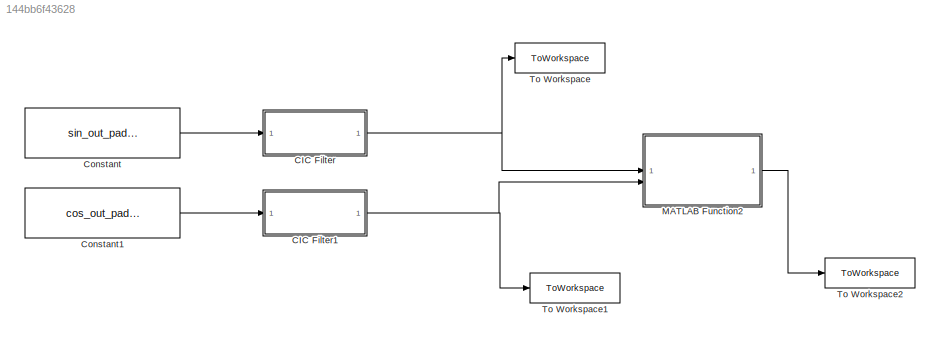
MODEL slx_144bb6f43628
KIND model
CONFIG AbsTol = auto
CONFIG EnableMultiTasking = off
CONFIG FixedStep = 1.25e-8
CONFIG MaxStep = auto
CONFIG MinStep = auto
CONFIG RelTol = 1e-3
CONFIG SampleTimeConstraint = Unconstrained
CONFIG SolverName = FixedStepAuto
CONFIG StartTime = 0.0
CONFIG StopTime = 0.01
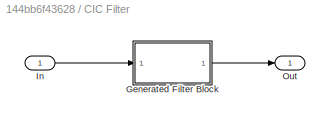
BLOCK [SubSystem] CIC Filter
  CopyFcn = fdesignblkfcn(gcbh, {'CopyFcn'});
  DialogController = fdesignblkfcn
  InitFcn = fdesignblkfcn(gcbh, {'InitFcn'});
  UserDataPersistent = on
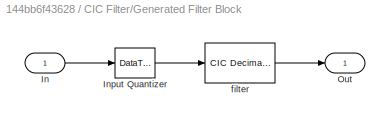
BLOCK [SubSystem] CIC Filter/Generated Filter Block
  Tag = BlockMethodSubSystem
BLOCK [Inport] CIC Filter/Generated Filter Block/In
BLOCK [DataTypeConversion] CIC Filter/Generated Filter Block/Input Quantizer
  OutDataTypeStr = fixdt(1,16,15)
  RndMeth = Round
BLOCK [Outport] CIC Filter/Generated Filter Block/Out
BLOCK [Reference] CIC Filter/Generated Filter Block/filter  REF=dspmlti4/CIC
Decimation
  SourceBlock = dspmlti4/CIC\nDecimation
  SourceType = CIC Decimation
  UserDataPersistent = on
BLOCK [Inport] CIC Filter/In
BLOCK [Outport] CIC Filter/Out
  VectorParamsAs1DForOutWhenUnconnected = off
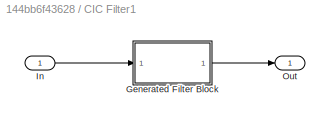
BLOCK [SubSystem] CIC Filter1
  CopyFcn = fdesignblkfcn(gcbh, {'CopyFcn'});
  DialogController = fdesignblkfcn
  InitFcn = fdesignblkfcn(gcbh, {'InitFcn'});
  UserDataPersistent = on
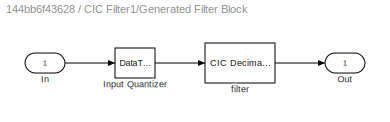
BLOCK [SubSystem] CIC Filter1/Generated Filter Block
  Tag = BlockMethodSubSystem
BLOCK [Inport] CIC Filter1/Generated Filter Block/In
BLOCK [DataTypeConversion] CIC Filter1/Generated Filter Block/Input Quantizer
  OutDataTypeStr = fixdt(1,16,15)
  RndMeth = Round
BLOCK [Outport] CIC Filter1/Generated Filter Block/Out
BLOCK [Reference] CIC Filter1/Generated Filter Block/filter  REF=dspmlti4/CIC
Decimation
  SourceBlock = dspmlti4/CIC\nDecimation
  SourceType = CIC Decimation
  UserDataPersistent = on
BLOCK [Inport] CIC Filter1/In
BLOCK [Outport] CIC Filter1/Out
  VectorParamsAs1DForOutWhenUnconnected = off
BLOCK [Constant] Constant
  Value = sin_out_padded
BLOCK [Constant] Constant1
  Value = cos_out_padded
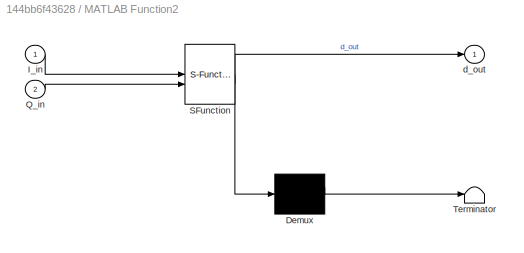
BLOCK [SubSystem] MATLAB Function2
  ErrorFcn = Stateflow.Translate.translate
  LibrarySourceBlock = simulink/User-Defined\nFunctions/MATLAB Function
  PermitHierarchicalResolution = ExplicitOnly
  SFBlockType = MATLAB Function
  TreatAsAtomicUnit = on
BLOCK [Demux] MATLAB Function2/ Demux 
  Outputs = 1
BLOCK [S-Function] MATLAB Function2/ SFunction 
  EnableBusSupport = on
  FunctionName = sf_sfun
  PortCounts = [2 2]
  SFcnIsStateOwnerBlock = off
  SFunctionDeploymentMode = off
  Tag = Stateflow S-Function 3
BLOCK [Terminator] MATLAB Function2/ Terminator 
BLOCK [Inport] MATLAB Function2/I_in
BLOCK [Inport] MATLAB Function2/Q_in
  Port = 2
BLOCK [Outport] MATLAB Function2/d_out
BLOCK [ToWorkspace] To Workspace
  FixptAsFi = on
  MaxDataPoints = inf
  SampleTime = -1
  SaveFormat = Structure With Time
  VariableName = CICOut1
BLOCK [ToWorkspace] To Workspace1
  FixptAsFi = on
  MaxDataPoints = inf
  SampleTime = -1
  SaveFormat = Structure With Time
  VariableName = CICOut2
BLOCK [ToWorkspace] To Workspace2
  FixptAsFi = on
  MaxDataPoints = inf
  SampleTime = -1
  SaveFormat = Structure With Time
  VariableName = AMDemod
NET CIC Filter1:1 -> MATLAB Function2:2, To Workspace1:1
NET CIC Filter:1 -> MATLAB Function2:1, To Workspace:1
LINE Constant1:1 -> CIC Filter1:1
LINE Constant:1 -> CIC Filter:1
LINE MATLAB Function2:1 -> To Workspace2:1
note: NET lines group one-source signal fan-out (src -> all destinations, sorted); 1:1 wires keep LINE
CHART MATLAB Function2 states=1 transitions=1
  STATE_LABEL 'eML_blk_kernel()'
  STATE_LABEL 'SCRIPT:\nfunction d_out = amDemodulator(I_in, Q_in)\n    % amDemodulator Calculates the amplitude of a signal given its I and Q components.\n    % Utilizes the sqrt function directly for simplicity and precision.\n\n    % Calculate the squares of I and Q components\n    ISquare = double(I_in).^2;\n    QSquare = double(Q_in).^2;\n\n    % Calculate the square root of the sum of the squares\n    magnitude = sq...<+116ch>'
CHART  states=0 transitions=0
